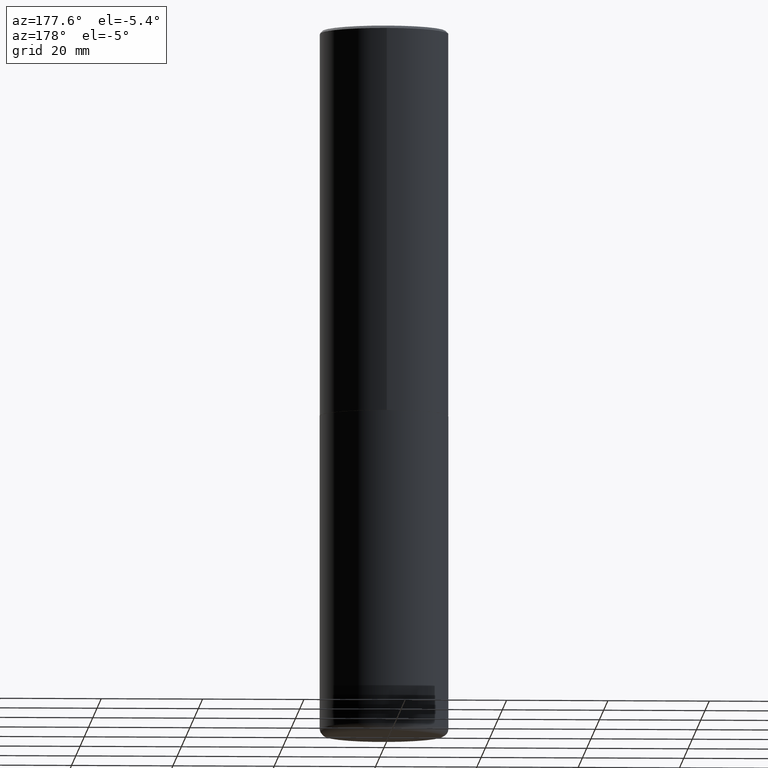
[diagram: clean part render]
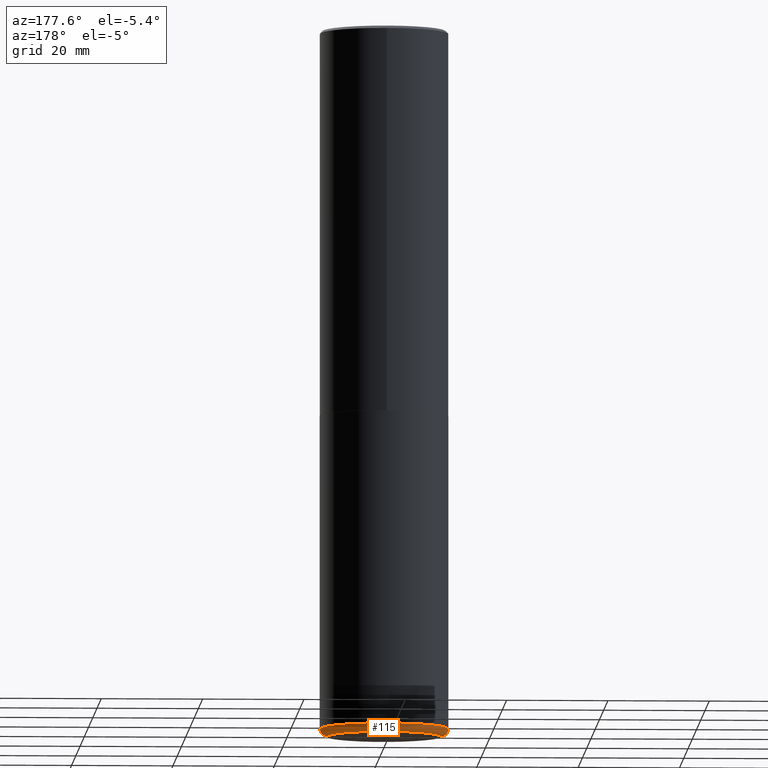
[diagram: same view with one face highlighted and labeled with its STEP entity id]
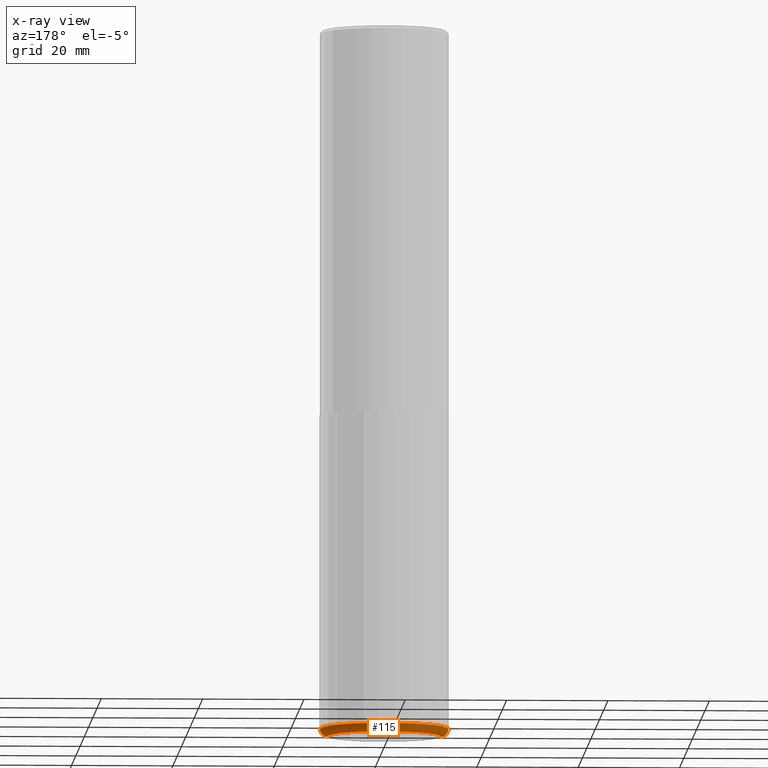
[diagram: x-ray of the same camera — body ghosted, the highlighted face saturated]
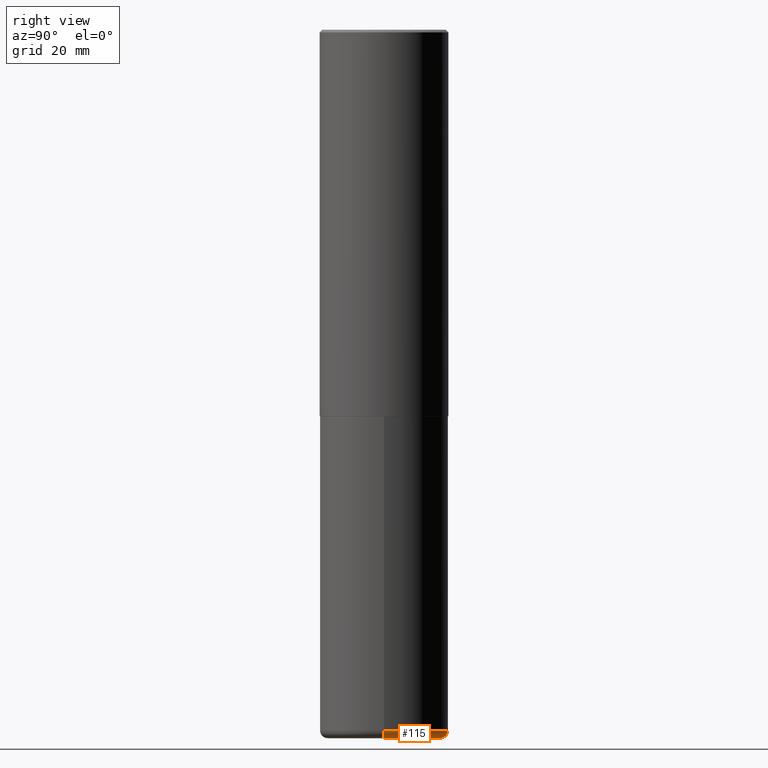
[diagram: same view with one face highlighted and labeled with its STEP entity id]
A machine part, auxiliary view. The second image highlights one B-rep face of the part: STEP entity #115.
The next image is the same camera in x-ray: the body ghosted, the highlighted face saturated — about 0% of this face is hidden behind the body in this view.
A second angle (right view) of the same face is appended — the face is thin or edge-on in the first view.
In plain terms, the highlighted toroidal blend (fillet) surface has major radius 11.176 mm and minor (blend) radius 1.524 mm.
Its self-contained STEP definition (entity closure, byte-faithful):
#1 = DIRECTION ( 'NONE',  ( 1.000000000000000000, -6.982962677686269077E-15, 0.000000000000000000 ) ) ;
#5 = VERTEX_POINT ( 'NONE', #397 ) ;
#6 = CIRCLE ( 'NONE', #292, 0.5000000000000001110 ) ;
#10 = AXIS2_PLACEMENT_3D ( 'NONE', #295, #241, #172 ) ;
#12 = FACE_OUTER_BOUND ( 'NONE', #34, .T. ) ;
#31 = CARTESIAN_POINT ( 'NONE',  ( -0.5000000000000002220, -1.544094480450621205E-14, -5.439999999999999503 ) ) ;
#34 = EDGE_LOOP ( 'NONE', ( #392, #316, #281, #71 ) ) ;
#53 = CIRCLE ( 'NONE', #119, 0.4400000000000000022 ) ;
#67 = DIRECTION ( 'NONE',  ( 1.000000000000000000, -6.982962677686270655E-15, 0.000000000000000000 ) ) ;
#71 = ORIENTED_EDGE ( 'NONE', *, *, #301, .F. ) ;
#73 = AXIS2_PLACEMENT_3D ( 'NONE', #297, #79, #367 ) ;
#79 = DIRECTION ( 'NONE',  ( 7.105427357601001859E-15, 1.000000000000000000, -3.491481338843145583E-15 ) ) ;
#97 = DIRECTION ( 'NONE',  ( -2.445468806185136597E-29, 3.491481338843145583E-15, 1.000000000000000000 ) ) ;
#98 = EDGE_CURVE ( 'NONE', #355, #374, #357, .T. ) ;
#115 = ADVANCED_FACE ( 'NONE', ( #12 ), #287, .T. ) ;
#119 = AXIS2_PLACEMENT_3D ( 'NONE', #320, #97, #67 ) ;
#120 = DIRECTION ( 'NONE',  ( 1.000000000000000000, -6.982962677686273021E-15, 0.000000000000000000 ) ) ;
#172 = DIRECTION ( 'NONE',  ( 1.000000000000000000, -6.982962677686262766E-15, 4.883557194083111780E-29 ) ) ;
#176 = CARTESIAN_POINT ( 'NONE',  ( 0.5000000000000002220, -2.248513982214985265E-14, -5.439999999999999503 ) ) ;
#189 = AXIS2_PLACEMENT_3D ( 'NONE', #411, #418, #120 ) ;
#196 = VERTEX_POINT ( 'NONE', #176 ) ;
#241 = DIRECTION ( 'NONE',  ( -2.445468806185136597E-29, 3.491481338843145583E-15, 1.000000000000000000 ) ) ;
#276 = CARTESIAN_POINT ( 'NONE',  ( 1.330335030564714425E-28, -1.899365848330671298E-14, -5.439999999999999503 ) ) ;
#279 = CIRCLE ( 'NONE', #189, 0.06000000000000051820 ) ;
#281 = ORIENTED_EDGE ( 'NONE', *, *, #380, .F. ) ;
#287 = TOROIDAL_SURFACE ( 'NONE', #10, 0.4400000000000000022, 0.06000000000000051820 ) ;
#292 = AXIS2_PLACEMENT_3D ( 'NONE', #276, #351, #1 ) ;
#295 = CARTESIAN_POINT ( 'NONE',  ( 1.330335030564714425E-28, -1.899365848330671298E-14, -5.439999999999999503 ) ) ;
#297 = CARTESIAN_POINT ( 'NONE',  ( -0.4400000000000000022, -1.586727044596227254E-14, -5.439999999999999503 ) ) ;
#301 = EDGE_CURVE ( 'NONE', #5, #196, #279, .T. ) ;
#316 = ORIENTED_EDGE ( 'NONE', *, *, #98, .T. ) ;
#320 = CARTESIAN_POINT ( 'NONE',  ( 1.345007843401825128E-28, -1.920314736363730603E-14, -5.500000000000000888 ) ) ;
#347 = CARTESIAN_POINT ( 'NONE',  ( -0.4400000000000000022, -1.575885206539953724E-14, -5.500000000000000888 ) ) ;
#351 = DIRECTION ( 'NONE',  ( -2.445468806185136597E-29, 3.491481338843145583E-15, 1.000000000000000000 ) ) ;
#355 = VERTEX_POINT ( 'NONE', #347 ) ;
#357 = CIRCLE ( 'NONE', #73, 0.06000000000000051820 ) ;
#367 = DIRECTION ( 'NONE',  ( -1.000000000000000000, 7.105427357600994759E-15, 0.000000000000000000 ) ) ;
#374 = VERTEX_POINT ( 'NONE', #31 ) ;
#380 = EDGE_CURVE ( 'NONE', #196, #374, #6, .T. ) ;
#392 = ORIENTED_EDGE ( 'NONE', *, *, #396, .T. ) ;
#396 = EDGE_CURVE ( 'NONE', #5, #355, #53, .T. ) ;
#397 = CARTESIAN_POINT ( 'NONE',  ( 0.4400000000000000022, -2.227565094181926275E-14, -5.500000000000000888 ) ) ;
#411 = CARTESIAN_POINT ( 'NONE',  ( 0.4400000000000000022, -2.206616206148867286E-14, -5.439999999999999503 ) ) ;
#418 = DIRECTION ( 'NONE',  ( -6.982962677686266711E-15, -1.000000000000000000, 3.491481338843145583E-15 ) ) ;